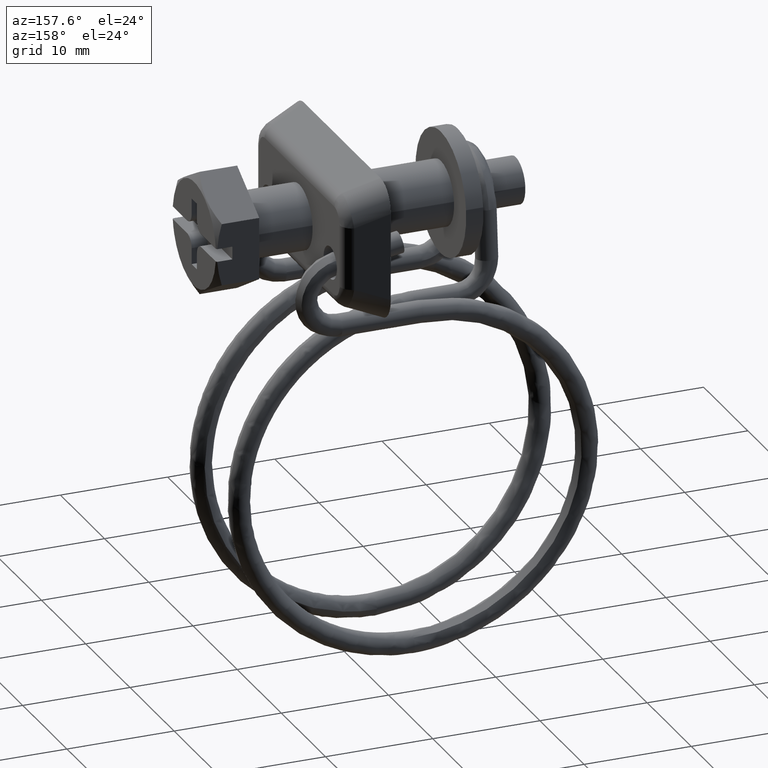
[diagram: clean part render]
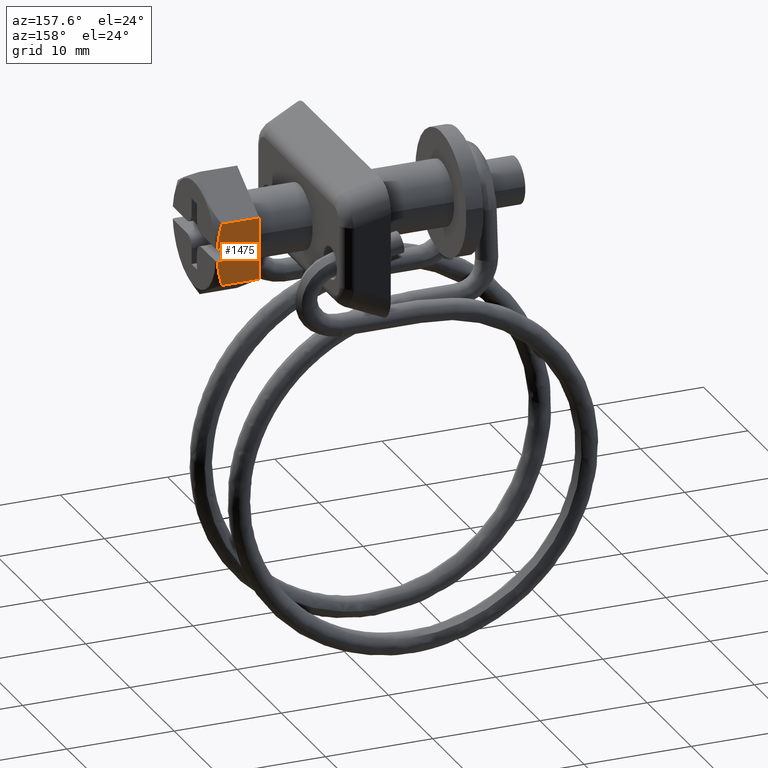
[diagram: same view with one face highlighted and labeled with its STEP entity id]
A machine part, auxiliary view. The second image highlights one B-rep face of the part: STEP entity #1475.
In plain terms, the highlighted face is a freeform B-spline surface patch.
Its self-contained STEP definition (entity closure, byte-faithful):
#611=CARTESIAN_POINT('',(2.500000000000000,5.0,0.600000000000108));
#612=VERTEX_POINT('',#611);
#743=CARTESIAN_POINT('',(2.500000000000000,5.0,-0.600000000000108));
#744=VERTEX_POINT('',#743);
#750=CARTESIAN_POINT('',(2.500000000000000,5.0,0.600000000000108));
#751=CARTESIAN_POINT('',(2.500000000000000,5.0,-0.600000000000108));
#752=QUASI_UNIFORM_CURVE('',1,(#750,#751),.UNSPECIFIED.,.F.,.U.);
#753=EDGE_CURVE('',#612,#744,#752,.T.);
#852=CARTESIAN_POINT('',(3.921553382859630,5.0,0.600000000000108));
#853=VERTEX_POINT('',#852);
#854=CARTESIAN_POINT('',(2.500000000000000,5.0,0.600000000000108));
#855=CARTESIAN_POINT('',(3.921553382859630,5.0,0.600000000000108));
#856=QUASI_UNIFORM_CURVE('',1,(#854,#855),.UNSPECIFIED.,.F.,.U.);
#857=EDGE_CURVE('',#612,#853,#856,.T.);
#883=CARTESIAN_POINT('',(3.921553382871959,4.999999999978490,-0.600000000000108));
#884=VERTEX_POINT('',#883);
#885=CARTESIAN_POINT('',(3.921553382871959,4.999999999978490,-0.600000000000108));
#886=CARTESIAN_POINT('',(2.500000000000000,5.0,-0.600000000000108));
#887=QUASI_UNIFORM_CURVE('',1,(#885,#886),.UNSPECIFIED.,.F.,.U.);
#888=EDGE_CURVE('',#884,#744,#887,.T.);
#1282=CARTESIAN_POINT('',(3.495681125994600,5.000000333086680,-2.886752807692225));
#1283=VERTEX_POINT('',#1282);
#1303=CARTESIAN_POINT('',(3.495681125994600,5.000000333086680,-2.886752807692225));
#1304=CARTESIAN_POINT('',(3.563506605499333,5.000000298230320,-2.651799756824193));
#1305=CARTESIAN_POINT('',(3.625826271034605,5.000000263180428,-2.414446698373334));
#1306=CARTESIAN_POINT('',(3.736194015088148,5.000000192813302,-1.935183790522843));
#1307=CARTESIAN_POINT('',(3.783840598061865,5.000000157741270,-1.694940854363231));
#1308=CARTESIAN_POINT('',(3.861532341052412,5.000000087857663,-1.213027020695840));
#1309=CARTESIAN_POINT('',(3.891560610367853,5.000000053046335,-0.971354752885853));
#1310=CARTESIAN_POINT('',(3.915330822062943,5.000000012241930,-0.685948248726719));
#1311=CARTESIAN_POINT('',(3.918597971070760,5.000000006107904,-0.642986769610418));
#1312=CARTESIAN_POINT('',(3.921553382871959,4.999999999978490,-0.600000000000108));
#1313=B_SPLINE_CURVE_WITH_KNOTS('',3,(#1303,#1304,#1305,#1306,#1307,#1308,#1309,#1310,#1311,#1312),.UNSPECIFIED.,.F.,.U.,(4,2,2,2,4),(0.0,0.125000000000000,0.250000000000000,0.375000000000000,0.397134908591765),.UNSPECIFIED.);
#1314=EDGE_CURVE('',#1283,#884,#1313,.T.);
#1334=CARTESIAN_POINT('',(0.0,5.0,2.886752000000115));
#1335=VERTEX_POINT('',#1334);
#1341=CARTESIAN_POINT('',(0.0,5.0,-2.886751999999885));
#1342=VERTEX_POINT('',#1341);
#1343=CARTESIAN_POINT('',(0.0,5.0,2.886752000000115));
#1344=CARTESIAN_POINT('',(0.0,5.0,-2.886751999999885));
#1345=QUASI_UNIFORM_CURVE('',1,(#1343,#1344),.UNSPECIFIED.,.F.,.U.);
#1346=EDGE_CURVE('',#1335,#1342,#1345,.T.);
#1436=CARTESIAN_POINT('',(3.495681125994600,5.000000333086680,-2.886752807692225));
#1437=CARTESIAN_POINT('',(0.0,5.0,-2.886751999999885));
#1438=QUASI_UNIFORM_CURVE('',1,(#1436,#1437),.UNSPECIFIED.,.F.,.U.);
#1439=EDGE_CURVE('',#1283,#1342,#1438,.T.);
#1444=CARTESIAN_POINT('',(-0.195881583873723,5.0,-3.175139395216803));
#1445=CARTESIAN_POINT('',(-0.195881583873723,5.0,3.175138277809761));
#1446=CARTESIAN_POINT('',(4.117435071929941,5.0,-3.175139395216803));
#1447=CARTESIAN_POINT('',(4.117435071929941,5.0,3.175138277809761));
#1448=B_SPLINE_SURFACE_WITH_KNOTS('',1,1,((#1444,#1446),(#1445,#1447)),.UNSPECIFIED.,.F.,.F.,.U.,(2,2),(2,2),(0.0,6.350277673026564),(0.0,4.313316655803663),.UNSPECIFIED.);
#1449=ORIENTED_EDGE('',*,*,#888,.F.);
#1450=ORIENTED_EDGE('',*,*,#1314,.F.);
#1451=ORIENTED_EDGE('',*,*,#1439,.T.);
#1452=ORIENTED_EDGE('',*,*,#1346,.F.);
#1453=CARTESIAN_POINT('',(3.495681525698610,5.0,2.886752000000115));
#1454=VERTEX_POINT('',#1453);
#1455=CARTESIAN_POINT('',(3.495681525698610,5.0,2.886752000000115));
#1456=CARTESIAN_POINT('',(0.0,5.0,2.886752000000115));
#1457=QUASI_UNIFORM_CURVE('',1,(#1455,#1456),.UNSPECIFIED.,.F.,.U.);
#1458=EDGE_CURVE('',#1454,#1335,#1457,.T.);
#1459=ORIENTED_EDGE('',*,*,#1458,.F.);
#1460=CARTESIAN_POINT('',(3.921553382859630,5.0,0.600000000000108));
#1461=CARTESIAN_POINT('',(3.918443043873730,5.0,0.645242739962404));
#1462=CARTESIAN_POINT('',(3.914983554295351,5.0,0.690513805655354));
#1463=CARTESIAN_POINT('',(3.890514875577219,5.0,0.981597628733137));
#1464=CARTESIAN_POINT('',(3.859920195691101,4.999999999999999,1.224765567673099));
#1465=CARTESIAN_POINT('',(3.742562060381867,5.0,1.947388861121443));
#1466=CARTESIAN_POINT('',(3.630398649317516,4.999999999999999,2.420080974363889));
#1467=CARTESIAN_POINT('',(3.495681525698610,5.0,2.886752000000115));
#1468=B_SPLINE_CURVE_WITH_KNOTS('',3,(#1460,#1461,#1462,#1463,#1464,#1465,#1466,#1467),.UNSPECIFIED.,.F.,.U.,(4,2,2,4),(0.601961865065497,0.625000000000000,0.750000000000000,1.0),.UNSPECIFIED.);
#1469=EDGE_CURVE('',#853,#1454,#1468,.T.);
#1470=ORIENTED_EDGE('',*,*,#1469,.F.);
#1471=ORIENTED_EDGE('',*,*,#857,.F.);
#1472=ORIENTED_EDGE('',*,*,#753,.T.);
#1473=EDGE_LOOP('',(#1449,#1450,#1451,#1452,#1459,#1470,#1471,#1472));
#1474=FACE_OUTER_BOUND('',#1473,.T.);
#1475=ADVANCED_FACE('',(#1474),#1448,.T.);